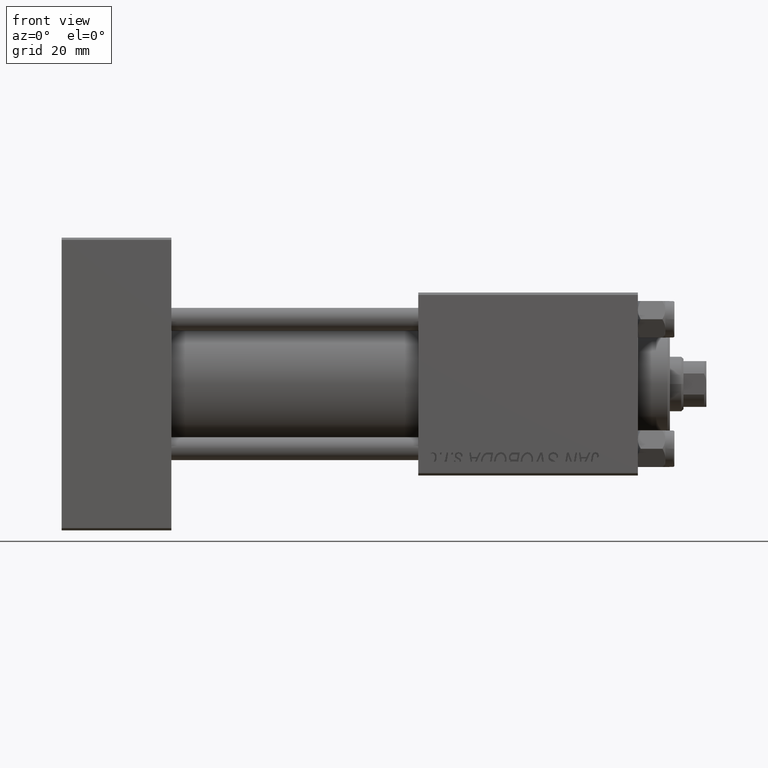
[diagram: clean part render]
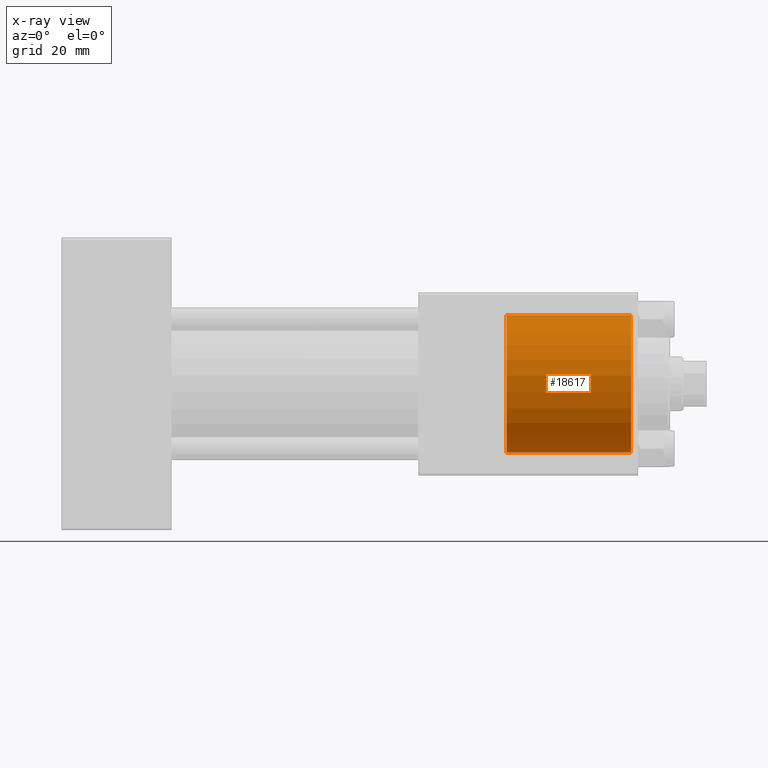
[diagram: x-ray — body ghosted, one internal face saturated and labeled with its STEP entity id]
A machine part, front view, then the same camera in x-ray: the body is ghosted and one INTERNAL B-rep face — a face not visible from any outside direction — is saturated and labeled: STEP entity #18617.
In plain terms, the highlighted cylindrical surface (partial cylindrical patch) has radius 15 mm, axis along (1, 0, 0).
Its self-contained STEP definition (entity closure, byte-faithful):
#167 = DIRECTION ( 'NONE',  ( 1.000000000000000000, -0.000000000000000000, -0.000000000000000000 ) ) ;
#1891 = AXIS2_PLACEMENT_3D ( 'NONE', #49045, #2863, #22287 ) ;
#2863 = DIRECTION ( 'NONE',  ( 1.000000000000000000, 0.000000000000000000, 0.000000000000000000 ) ) ;
#5746 = CARTESIAN_POINT ( 'NONE',  ( 97.29999999999999716, 1.836970198721029589E-15, 15.00000000000000000 ) ) ;
#6451 = EDGE_CURVE ( 'NONE', #46550, #39075, #40830, .T. ) ;
#7367 = EDGE_LOOP ( 'NONE', ( #9035, #15381, #36408, #47653 ) ) ;
#9035 = ORIENTED_EDGE ( 'NONE', *, *, #6451, .F. ) ;
#10098 = EDGE_CURVE ( 'NONE', #46550, #38588, #39249, .T. ) ;
#12878 = AXIS2_PLACEMENT_3D ( 'NONE', #34721, #167, #38515 ) ;
#13002 = DIRECTION ( 'NONE',  ( 1.000000000000000000, -0.000000000000000000, -0.000000000000000000 ) ) ;
#14571 = EDGE_CURVE ( 'NONE', #39075, #41767, #41355, .T. ) ;
#15381 = ORIENTED_EDGE ( 'NONE', *, *, #10098, .T. ) ;
#15666 = DIRECTION ( 'NONE',  ( 0.000000000000000000, 0.000000000000000000, -1.000000000000000000 ) ) ;
#16663 = AXIS2_PLACEMENT_3D ( 'NONE', #23238, #38387, #15666 ) ;
#18400 = VECTOR ( 'NONE', #13002, 1000.000000000000000 ) ;
#18617 = ADVANCED_FACE ( 'NONE', ( #38276 ), #23124, .F. ) ;
#22287 = DIRECTION ( 'NONE',  ( 0.000000000000000000, 0.000000000000000000, 1.000000000000000000 ) ) ;
#22411 = CARTESIAN_POINT ( 'NONE',  ( 124.5000000000000000, 1.836970198721029589E-15, 15.00000000000000000 ) ) ;
#23124 = CYLINDRICAL_SURFACE ( 'NONE', #12878, 15.00000000000000000 ) ;
#23238 = CARTESIAN_POINT ( 'NONE',  ( 97.29999999999999716, 0.000000000000000000, 0.000000000000000000 ) ) ;
#25699 = CARTESIAN_POINT ( 'NONE',  ( 97.29999999999999716, 0.000000000000000000, -15.00000000000000000 ) ) ;
#26761 = CARTESIAN_POINT ( 'NONE',  ( 124.5000000000000000, 0.000000000000000000, -15.00000000000000000 ) ) ;
#27054 = EDGE_CURVE ( 'NONE', #38588, #41767, #28468, .T. ) ;
#28468 = CIRCLE ( 'NONE', #1891, 15.00000000000000000 ) ;
#34721 = CARTESIAN_POINT ( 'NONE',  ( 97.29999999999999716, 0.000000000000000000, 0.000000000000000000 ) ) ;
#35853 = CARTESIAN_POINT ( 'NONE',  ( 97.29999999999999716, 0.000000000000000000, -15.00000000000000000 ) ) ;
#36408 = ORIENTED_EDGE ( 'NONE', *, *, #27054, .T. ) ;
#37067 = DIRECTION ( 'NONE',  ( 1.000000000000000000, -0.000000000000000000, -0.000000000000000000 ) ) ;
#38276 = FACE_OUTER_BOUND ( 'NONE', #7367, .T. ) ;
#38387 = DIRECTION ( 'NONE',  ( 1.000000000000000000, 0.000000000000000000, 0.000000000000000000 ) ) ;
#38515 = DIRECTION ( 'NONE',  ( 0.000000000000000000, 0.000000000000000000, -1.000000000000000000 ) ) ;
#38588 = VERTEX_POINT ( 'NONE', #22411 ) ;
#39075 = VERTEX_POINT ( 'NONE', #35853 ) ;
#39249 = LINE ( 'NONE', #43298, #18400 ) ;
#40830 = CIRCLE ( 'NONE', #16663, 15.00000000000000000 ) ;
#41355 = LINE ( 'NONE', #25699, #42603 ) ;
#41767 = VERTEX_POINT ( 'NONE', #26761 ) ;
#42603 = VECTOR ( 'NONE', #37067, 1000.000000000000000 ) ;
#43298 = CARTESIAN_POINT ( 'NONE',  ( 97.29999999999999716, 1.836970198721029589E-15, 15.00000000000000000 ) ) ;
#46550 = VERTEX_POINT ( 'NONE', #5746 ) ;
#47653 = ORIENTED_EDGE ( 'NONE', *, *, #14571, .F. ) ;
#49045 = CARTESIAN_POINT ( 'NONE',  ( 124.5000000000000000, 0.000000000000000000, 0.000000000000000000 ) ) ;